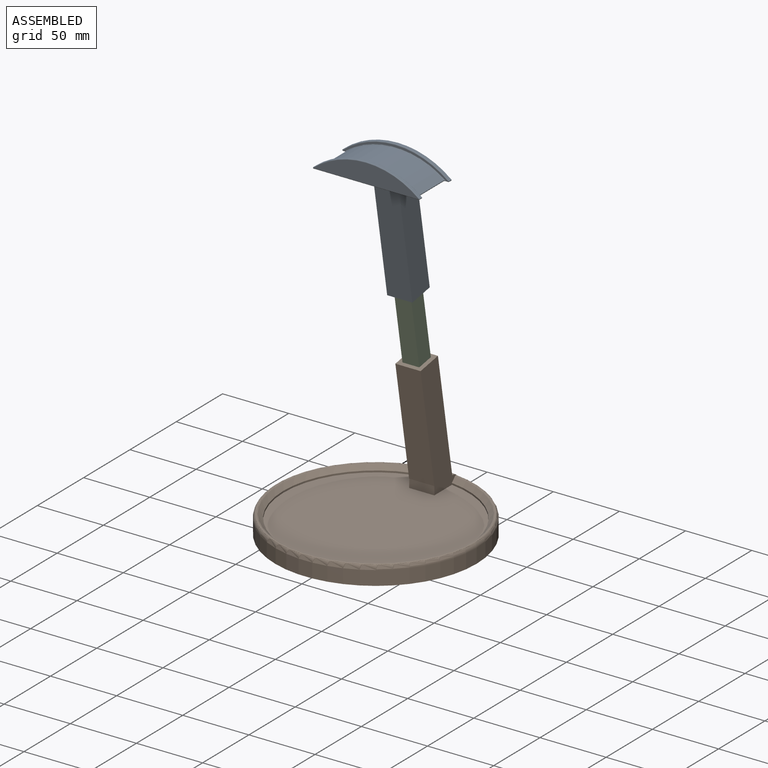
[diagram: assembled view]
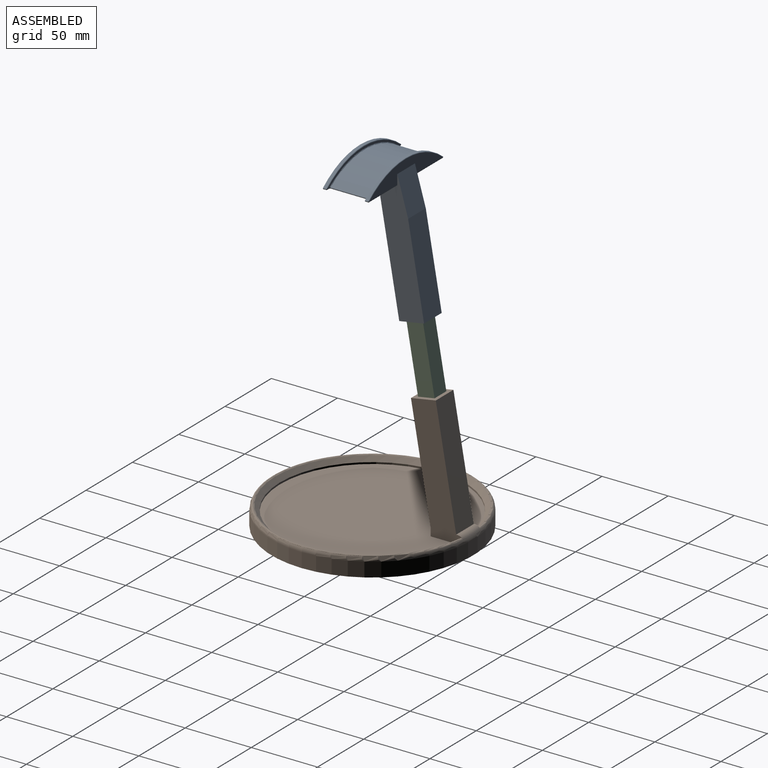
[diagram: assembled view, second angle]
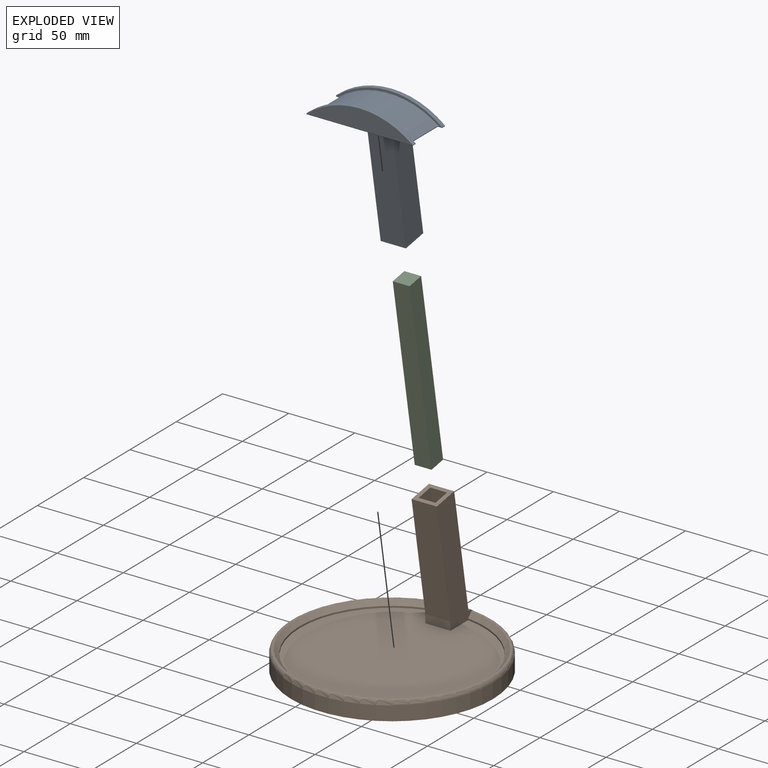
[diagram: exploded view]
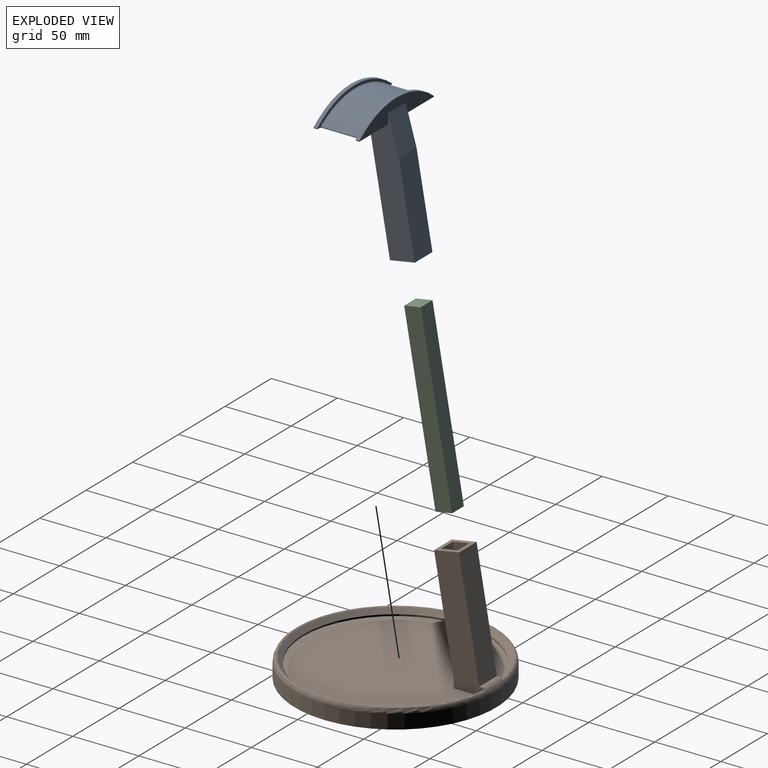
[diagram: exploded view, second angle]
ASSEMBLY  parts=3 mates=2
PART A: 50 faces, bbox 87x55.2x112.6 mm
  f0: plane 68.32x19.05mm, normal (0,-0.98,0.17), area 1321.7mm2, adj f1,f2,f43,f44
  f1: plane 100.06x35mm, normal (1,0,0), area 1735.6mm2, adj f0,f4,f5,f7,f42,f43,f44
  f2: plane 100.06x35mm, normal (-1,0,0), area 1735.6mm2, adj f0,f4,f5,f7,f38,f43,f44
  f3: cylinder r=63.5mm len=73.68mm, axis (0,1,0), area 2166.2mm2, adj f16,f17,f22,f34
  f4: plane 92.12x19.05mm, normal (0,0.98,-0.17), area 1781.9mm2, adj f1,f2,f5,f44
  f5: plane 79.75x33.91mm, normal (0,0,-1), area 2237mm2, adj f1,f2,f4,f12,f13,f14,f15,f16
  f6: plane 79.75x14.23mm, normal (0,1,0), area 775.4mm2, adj f26,f29
  f7: plane 79.75x14.23mm, normal (0,-1,0), area 633.9mm2, adj f1,f2,f38,f40,f42,f43
  f8: cylinder r=63.5mm len=80.4mm, axis (0,1,0), area 187.9mm2, adj f14,f15,f21,f26
  f9: plane 79.75x14.23mm, normal (0,-1,0), area 113.3mm2, adj f18,f21,f22,f25
  f10: cylinder r=63.5mm len=80.4mm, axis (0,-1,0), area 187.9mm2, adj f12,f13,f33,f40
  f11: plane 79.75x14.23mm, normal (0,1,0), area 113.3mm2, adj f30,f33,f34,f37
  f12: cylinder r=0.51mm len=2.16mm, axis (0,-1,0), area 2.7mm2, adj f5,f10,f35,f41
  f13: cylinder r=0.51mm len=2.16mm, axis (0,-1,0), area 2.7mm2, adj f5,f10,f31,f39
  f14: cylinder r=0.51mm len=2.16mm, axis (0,1,0), area 2.7mm2, adj f5,f8,f23,f28
  f15: cylinder r=0.51mm len=2.16mm, axis (0,1,0), area 2.7mm2, adj f5,f8,f19,f27
  f16: cylinder r=0.51mm len=27.56mm, axis (0,1,0), area 35.3mm2, adj f3,f5,f24,f32
  f17: cylinder r=0.51mm len=27.56mm, axis (0,1,0), area 35.3mm2, adj f3,f5,f20,f36
  f18: cylinder r=0.51mm len=1.61mm, axis (-1,0,0), area 1.3mm2, adj f5,f9,f19,f20
  f19: sphere r=0.51mm, area 0.7mm2, adj f15,f18,f21
  f20: bspline ~1.81x1.42mm, area 1.7mm2, adj f5,f17,f18,f22
  f21: torus R=62.99mm, axis (0,1,0), area 69.3mm2, adj f8,f9,f19,f23
  f22: torus R=64.01mm, axis (0,1,0), area 63.7mm2, adj f3,f9,f20,f24
  f23: sphere r=0.51mm, area 0.6mm2, adj f14,f21,f25
  f24: bspline ~1.97x1.43mm, area 1.7mm2, adj f5,f16,f22,f25
  f25: cylinder r=0.51mm len=1.61mm, axis (-1,0,0), area 1.3mm2, adj f5,f9,f23,f24
  f26: torus R=62.99mm, axis (0,-1,0), area 69.3mm2, adj f6,f8,f27,f28
  f27: sphere r=0.51mm, area 0.6mm2, adj f15,f26,f29
  f28: sphere r=0.51mm, area 0.6mm2, adj f14,f26,f29
  f29: cylinder r=0.51mm len=79.75mm, axis (1,0,0), area 63.6mm2, adj f5,f6,f27,f28
  f30: cylinder r=0.51mm len=1.61mm, axis (1,0,0), area 1.3mm2, adj f5,f11,f31,f32
  f31: sphere r=0.51mm, area 0.6mm2, adj f13,f30,f33
  f32: bspline ~1.81x1.42mm, area 1.7mm2, adj f5,f16,f30,f34
  f33: torus R=62.99mm, axis (0,-1,0), area 69.3mm2, adj f10,f11,f31,f35
  f34: torus R=64.01mm, axis (0,-1,0), area 63.7mm2, adj f3,f11,f32,f36
  f35: sphere r=0.51mm, area 0.6mm2, adj f12,f33,f37
  f36: bspline ~1.97x1.43mm, area 1.7mm2, adj f5,f17,f34,f37
  f37: cylinder r=0.51mm len=1.61mm, axis (1,0,0), area 1.3mm2, adj f5,f11,f35,f36
  f38: cylinder r=0.51mm len=30.35mm, axis (1,0,0), area 24.2mm2, adj f2,f5,f7,f39
  f39: sphere r=0.51mm, area 0.6mm2, adj f13,f38,f40
  f40: torus R=62.99mm, axis (0,1,0), area 69.3mm2, adj f7,f10,f39,f41
  f41: sphere r=0.51mm, area 0.6mm2, adj f12,f40,f42
  f42: cylinder r=0.51mm len=30.35mm, axis (1,0,0), area 24.2mm2, adj f1,f5,f7,f41
  f43: plane 28.42x19.05mm, normal (0,-0.96,0.28), area 563.5mm2, adj f0,f1,f2,f7
  f44: plane 19.05x18.76mm, normal (0,-0.17,-0.98), area 201.6mm2, adj f0,f1,f2,f4,f46,f47,f48,f49
  f45: plane 12.7x12.51mm, normal (0,-0.17,-0.98), area 161.3mm2, adj f46,f47,f48,f49
  f46: plane 12.7x9.2mm, normal (0,0.98,-0.17), area 118.6mm2, adj f44,f45,f47,f49
  f47: plane 14.13x11.4mm, normal (-1,0,0), area 118.6mm2, adj f44,f45,f46,f48
  f48: plane 12.7x9.2mm, normal (0,-0.98,0.17), area 118.6mm2, adj f44,f45,f47,f49
  f49: plane 14.13x11.4mm, normal (1,0,0), area 118.6mm2, adj f44,f45,f46,f48
PART B: 19 faces, bbox 165x165x103.4 mm
  f0: plane 84.18x19.05mm, normal (0,-0.98,-0.17), area 1628.4mm2, adj f2,f3,f8,f13
  f1: plane 87.49x19.05mm, normal (0,0.98,0.17), area 1692.4mm2, adj f2,f3,f5,f13
  f2: plane 93.9x39.12mm, normal (1,0,0), area 1793mm2, adj f0,f1,f5,f7,f8,f9,f10,f11
  f3: plane 93.91x38.99mm, normal (-1,0,0), area 1792mm2, adj f0,f1,f5,f7,f8,f9,f10,f11
  f4: cylinder r=76.2mm len=152.4mm, axis (0,0,-1), area 5168.4mm2, adj f6,f11
  f5: plane 19.05x1.48mm, normal (0,0,1), area 24.1mm2, adj f1,f2,f3,f11
  f6: plane 152.4x152.4mm, normal (0,0,-1), area 18241.5mm2, adj f4
  f7: cylinder r=69.85mm len=139.7mm, axis (0,0,1), area 533.1mm2, adj f2,f3,f9,f10
  f8: plane 19.05x6.35mm, normal (0,-1,0), area 121mm2, adj f0,f2,f3,f9
  f9: plane 139.7x139.12mm, normal (0,0,1), area 14959.6mm2, adj f2,f3,f7,f8
  f10: cone r=69.85mm half-angle=45deg, axis (0,0,1), area 2017.5mm2, adj f2,f3,f7,f12
  f11: torus R=71.12mm, axis (0,0,1), area 1749.7mm2, adj f2,f3,f4,f5,f12
  f12: torus R=74.06mm, axis (0,0,-1), area 946.4mm2, adj f2,f3,f10,f11
  f13: plane 19.05x18.76mm, normal (0,-0.17,0.98), area 201.6mm2, adj f0,f1,f2,f3,f15,f16,f17,f18
  f14: plane 12.7x12.51mm, normal (0,-0.17,0.98), area 161.3mm2, adj f15,f16,f17,f18
  f15: plane 75.04x13.23mm, normal (0,0.98,0.17), area 967.7mm2, adj f13,f14,f16,f18
  f16: plane 77.25x25.74mm, normal (-1,0,0), area 967.7mm2, adj f13,f14,f15,f17
  f17: plane 75.04x13.23mm, normal (0,-0.98,-0.17), area 967.7mm2, adj f13,f14,f16,f18
  f18: plane 77.25x25.74mm, normal (1,0,0), area 967.7mm2, adj f13,f14,f15,f17
PART C: 6 faces, bbox 12.7x136.5x12.7 mm
  f0: plane 12.7x12.7mm, normal (0,-1,0), area 161.3mm2, adj f1,f3,f4,f5
  f1: plane 136.53x12.7mm, normal (1,0,0), area 1733.9mm2, adj f0,f2,f4,f5
  f2: plane 12.7x12.7mm, normal (0,1,0), area 161.3mm2, adj f1,f3,f4,f5
  f3: plane 136.53x12.7mm, normal (-1,0,0), area 1733.9mm2, adj f0,f2,f4,f5
  f4: plane 136.53x12.7mm, normal (0,0,1), area 1733.9mm2, adj f0,f1,f2,f3
  f5: plane 136.53x12.7mm, normal (0,0,-1), area 1733.9mm2, adj f0,f1,f2,f3
PLACE A rot(axis=(0,0,1),180deg) t=(-26.78,64.17,230.73)mm
PLACE B t=(-26.78,75.36,105.48)mm
PLACE C rot(axis=(-1,0,0),80deg) t=(-26.78,93.1,198.27)mm
MATE fastened A.f45 <-> C.f0  axis (0,0.17,-0.98) through (-26.78,87.5,266.6)mm
MATE fastened C.f2 <-> B.f14  axis (0,0.17,-0.98) through (-26.78,111.21,132.15)mm
